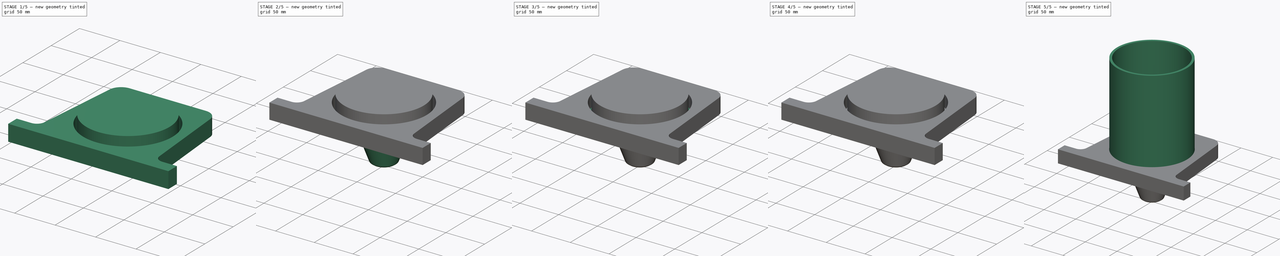
[diagram: build sequence overview — one tinted view per stage of 5, left to right]
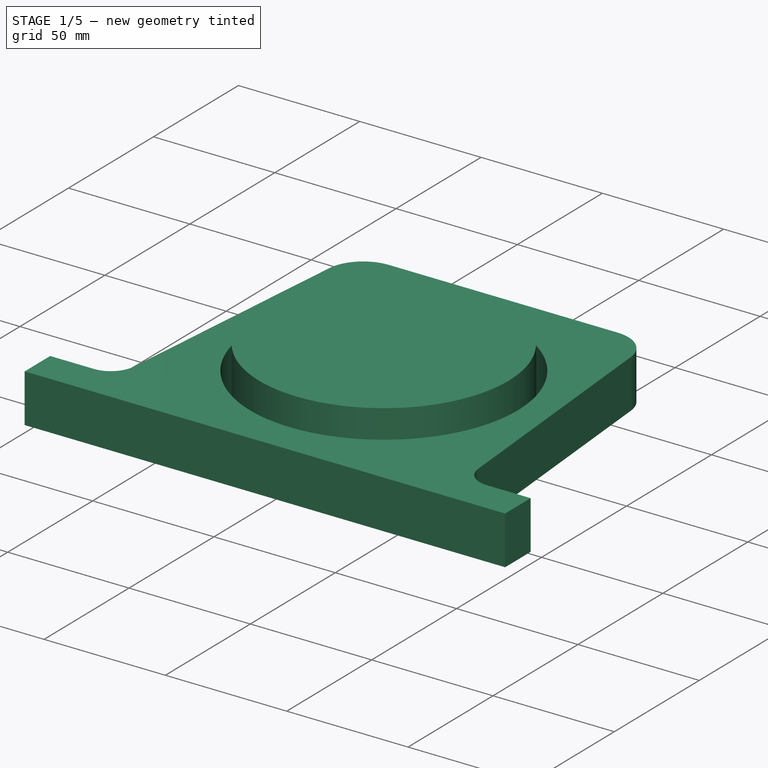
[diagram: stage 1 of 5 — iso view after this stage's code; geometry added in this stage tinted green]
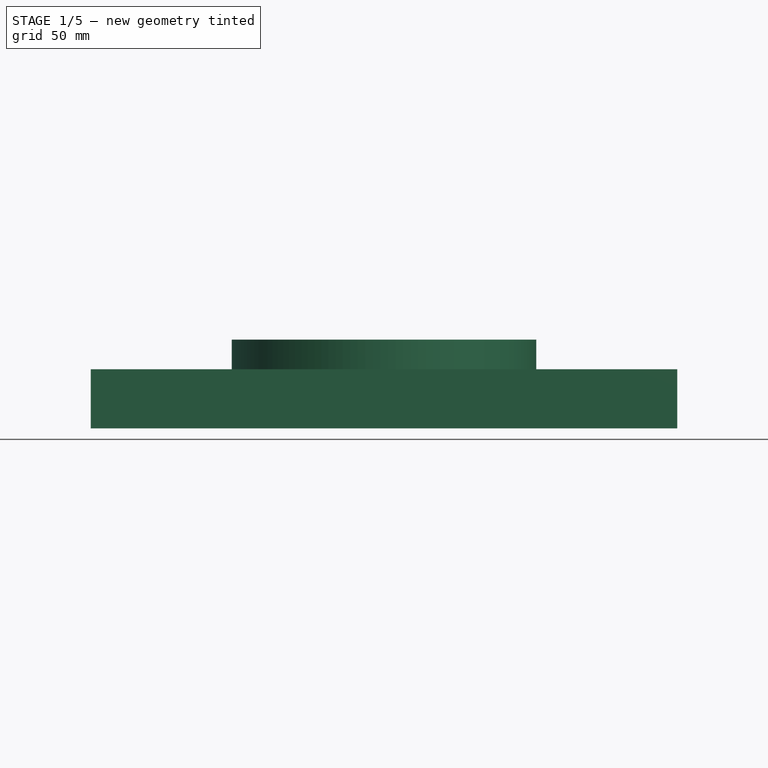
[diagram: stage 1 of 5 — front view after this stage's code; geometry added in this stage tinted green]
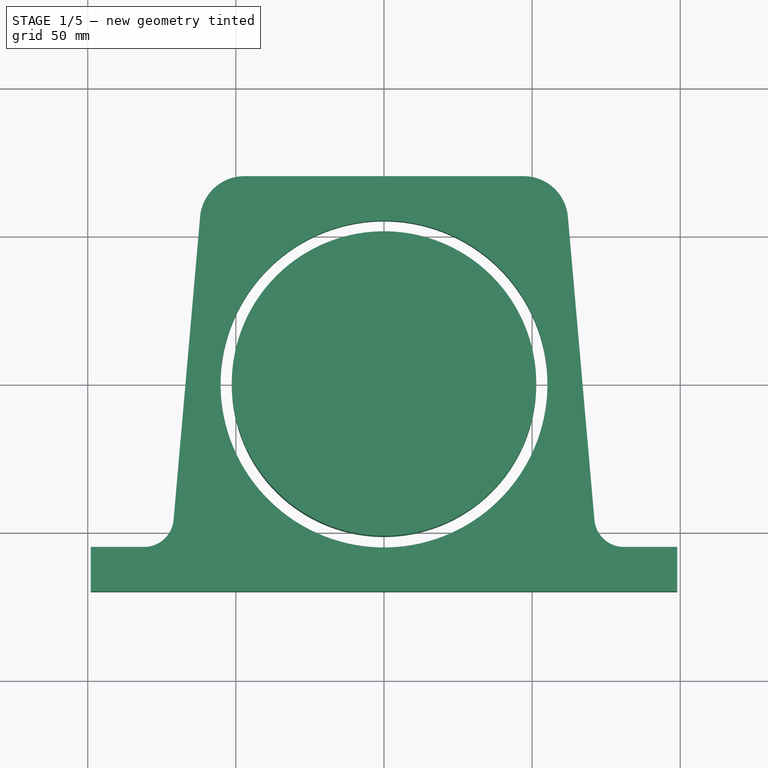
[diagram: stage 1 of 5 — top view after this stage's code; geometry added in this stage tinted green]
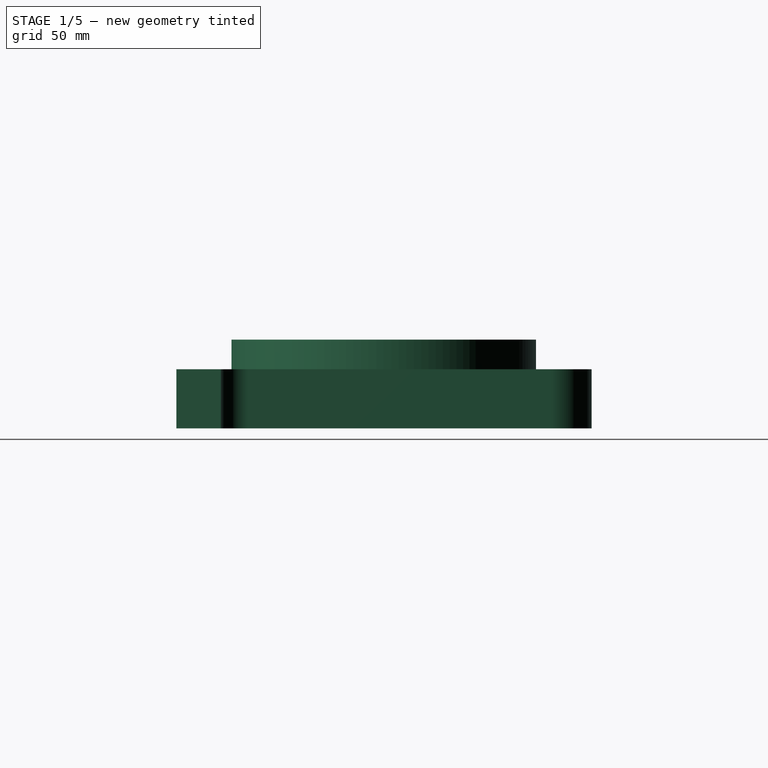
[diagram: stage 1 of 5 — right view after this stage's code; geometry added in this stage tinted green]
FCSTD DOCUMENT  (FreeCAD 0.19R24276 (Git))
Label: paper_briquette_maker
License: All rights reserved
LicenseURL: http://en.wikipedia.org/wiki/All_rights_reserved
objects: TechDraw::DrawProjGroupItem×36, PartDesign::Chamfer×5, PartDesign::AdditiveCylinder×4, PartDesign::Body×4, TechDraw::DrawSVGTemplate×4, TechDraw::DrawProjGroup×4, TechDraw::DrawPage×4, Sketcher::SketchObject×3, PartDesign::Pocket×2, PartDesign::Fillet×2, Spreadsheet::Sheet×1, PartDesign::PolarPattern×1, PartDesign::SubtractiveCylinder×1, PartDesign::AdditiveCone×1, PartDesign::Pad×1
note: 40 computed .brp shape members not serialized (recipe doc carries the construction recipe); baked Part::Feature solids carry a one-line shape summary decoded from their .brp

FEATURE [PartDesign::AdditiveCylinder] Cylinder002
  Angle = 360
  AttacherType = Attacher::AttachEngine3D
  Height = 30
  Radius = 51.4
  expr: Radius = Spreadsheet.tube_diameter / 2 - Spreadsheet.tube_thickness
FEATURE [PartDesign::Chamfer] Chamfer001
  Angle = 45
  Base = -> Cylinder002 [Edge3]
  BaseFeature = -> Cylinder002
  ChamferType = 0
  FlipDirection = false
  Size = 3
  Size2 = 1
  SupportTransform = false
FEATURE [PartDesign::Body] Body001  label="pusher"
  Group = -> [Cylinder002,Chamfer001,Cone,Chamfer004,Fillet,Fillet001]
  Origin = -> Origin001
  Placement = pos=(0,0,120) rot=(0,0,1;0rad)
  Tip = -> Fillet001
FEATURE [Sketcher::SketchObject] Sketch002
  FullyConstrained = true
  MapMode = 5
  Support = -> [XY_Plane003]
  expr: Constraints[10] = Spreadsheet.tube_diameter / 2 + 15
  expr: Constraints[12] = Spreadsheet.tube_diameter * 1.8
  expr: Constraints[9] = Spreadsheet.tube_diameter / 2 + Spreadsheet.gap
  sketch-geometry (14):
    g0: Circle CenterX=0 CenterY=0 CenterZ=0 NormalX=0 NormalY=0 NormalZ=1 AngleXU=0 Radius=55.18
    g1: LineSegment StartX=-99 StartY=-55 StartZ=0 EndX=-81 EndY=-55 EndZ=0
    g2: LineSegment StartX=-71.0381 StartY=-45.8716 StartZ=0 EndX=-62.0828 EndY=56.4873 EndZ=0
    g3: LineSegment StartX=-47.1399 StartY=70.18 StartZ=0 EndX=47.1399 EndY=70.18 EndZ=0
    g4: LineSegment StartX=62.0828 StartY=56.4873 StartZ=0 EndX=71.0381 EndY=-45.8716 EndZ=0
    g5: LineSegment StartX=81 StartY=-55 StartZ=0 EndX=99 EndY=-55 EndZ=0
    g6: LineSegment StartX=99 StartY=-55 StartZ=0 EndX=99 EndY=-70 EndZ=0
    g7: LineSegment StartX=99 StartY=-70 StartZ=0 EndX=-99 EndY=-70 EndZ=0
    g8: LineSegment StartX=-99 StartY=-70 StartZ=0 EndX=-99 EndY=-55 EndZ=0
    g9: ArcOfCircle CenterX=-47.1399 CenterY=55.18 CenterZ=0 NormalX=0 NormalY=0 NormalZ=1 AngleXU=0 Radius=15 StartAngle=1.5708 EndAngle=3.05433
    g10: ArcOfCircle CenterX=47.1399 CenterY=55.18 CenterZ=0 NormalX=0 NormalY=0 NormalZ=1 AngleXU=0 Radius=15 StartAngle=0.0872665 EndAngle=1.5708
    g11: ArcOfCircle CenterX=81 CenterY=-45 CenterZ=0 NormalX=0 NormalY=0 NormalZ=1 AngleXU=0 Radius=10 StartAngle=3.22886 EndAngle=4.71239
    g12: ArcOfCircle CenterX=-81 CenterY=-45 CenterZ=0 NormalX=0 NormalY=0 NormalZ=1 AngleXU=0 Radius=10 StartAngle=4.71239 EndAngle=6.19592
    g13: LineSegment StartX=-47.1399 StartY=55.18 StartZ=0 EndX=47.1399 EndY=55.18 EndZ=0
  constraints (34):
    c: Coincident(g0,g-1)
    c: Horizontal(g1)
    c: Horizontal(g5)
    c: Coincident(g5,g6)
    c: Coincident(g6,g7)
    c: Coincident(g7,g8)
    c: Coincident(g8,g1)
    c: Vertical(g8)
    c: Vertical(g6)
    c: Radius(g0) = 55.18
    c: DistanceY(g6,g0) = 70
    c: Symmetric(g7,g6,g-2)
    c: DistanceX(g7,g7) = 198
    c: Tangent(g2,g9) = 1.5708
    c: Tangent(g3,g9) = 1.5708
    c: Tangent(g3,g10) = 1.5708
    c: Tangent(g4,g10) = 1.5708
    c: Tangent(g4,g11) = -1.5708
    c: Tangent(g5,g11) = -1.5708
    c: Tangent(g1,g12) = -1.5708
    c: Tangent(g2,g12) = -1.5708
    c: Equal(g12,g11)
    c: Horizontal(g12,g11)
    c: Equal(g10,g9)
    c: Equal(g1,g5)
    c: Radius(g11) = 10
    c: Radius(g10) = 15
    c: Symmetric(g9,g10,g-2)
    c: DistanceY(g6,g6) = 15
    c: DistanceX(g1,g1) = 18
    c: Coincident(g13,g9)
    c: Coincident(g13,g10)
    c: Tangent(g13,g0)
    c: Angle(g5,g4) = 1.65806
FEATURE [PartDesign::Pad] Pad
  Direction = (1,1,1)
  Length = 20
  Length2 = 100
  Profile = -> Sketch002
  Type = 0
FEATURE [PartDesign::Body] Body003  label="tube_holder"
  Group = -> [Sketch002,Pad]
  Origin = -> Origin003
  Placement = pos=(0,0,20) rot=(0,0,1;0rad)
  Tip = -> Pad
FEATURE [TechDraw::DrawSVGTemplate] Template_Cylinder004
  Height = 297
  Orientation = 1
  Width = 420
FEATURE [TechDraw::DrawProjGroupItem] ProjItem  label="Front"
  CoarseView = false
  Direction = (0,-1,0)
  Focus = 100
  HardHidden = false
  IsoCount = 0
  IsoHidden = false
  IsoVisible = false
  LockPosition = true
  Perspective = false
  Rotation = 0
  RotationVector = (1,0,0)
  Scale = 0.375
  ScaleType = 2
  SeamHidden = false
  SeamVisible = true
  SmoothHidden = false
  SmoothVisible = true
  Source = -> [Cylinder004]
  Type = 0
  X = 0
  XDirection = (1,0,0)
  Y = 0
FEATURE [TechDraw::DrawProjGroupItem] ProjItem001  label="Right"
  CoarseView = false
  Direction = (1,-1e-16,0)
  Focus = 100
  HardHidden = false
  IsoCount = 0
  IsoHidden = false
  IsoVisible = false
  LockPosition = false
  Perspective = false
  Rotation = 0
  RotationVector = (1,0,0)
  Scale = 0.375
  ScaleType = 2
  SeamHidden = false
  SeamVisible = true
  SmoothHidden = false
  SmoothVisible = true
  Source = -> [Cylinder004]
  Type = 2
  X = -70.4968
  XDirection = (1e-16,1,0)
  Y = 0
FEATURE [TechDraw::DrawProjGroupItem] ProjItem002  label="Top"
  CoarseView = false
  Direction = (0,0,1)
  Focus = 100
  HardHidden = false
  IsoCount = 0
  IsoHidden = false
  IsoVisible = false
  LockPosition = false
  Perspective = false
  Rotation = 0
  RotationVector = (1,0,0)
  Scale = 0.375
  ScaleType = 2
  SeamHidden = false
  SeamVisible = true
  SmoothHidden = false
  SmoothVisible = true
  Source = -> [Cylinder004]
  Type = 4
  X = 0
  XDirection = (1,0,0)
  Y = -98.9904
FEATURE [TechDraw::DrawProjGroupItem] ProjItem003  label="Left"
  CoarseView = false
  Direction = (-1,-1e-16,0)
  Focus = 100
  HardHidden = false
  IsoCount = 0
  IsoHidden = false
  IsoVisible = false
  LockPosition = false
  Perspective = false
  Rotation = 0
  RotationVector = (1,0,0)
  Scale = 0.375
  ScaleType = 2
  SeamHidden = false
  SeamVisible = true
  SmoothHidden = false
  SmoothVisible = true
  Source = -> [Cylinder004]
  Type = 1
  X = 70.4968
  XDirection = (1e-16,-1,0)
  Y = 0
FEATURE [TechDraw::DrawProjGroupItem] ProjItem004  label="Bottom"
  CoarseView = false
  Direction = (0,0,-1)
  Focus = 100
  HardHidden = false
  IsoCount = 0
  IsoHidden = false
  IsoVisible = false
  LockPosition = false
  Perspective = false
  Rotation = 0
  RotationVector = (1,0,0)
  Scale = 0.375
  ScaleType = 2
  SeamHidden = false
  SeamVisible = true
  SmoothHidden = false
  SmoothVisible = true
  Source = -> [Cylinder004]
  Type = 5
  X = 0
  XDirection = (1,0,0)
  Y = 70.4968
FEATURE [TechDraw::DrawProjGroupItem] ProjItem005  label="FrontBottomLeft"
  CoarseView = false
  Direction = (-0.57735,-0.57735,-0.57735)
  Focus = 100
  HardHidden = false
  IsoCount = 0
  IsoHidden = false
  IsoVisible = false
  LockPosition = false
  Perspective = false
  Rotation = 0
  RotationVector = (1,0,0)
  Scale = 0.375
  ScaleType = 2
  SeamHidden = false
  SeamVisible = true
  SmoothHidden = false
  SmoothVisible = true
  Source = -> [Cylinder004]
  Type = 8
  X = 70.4968
  XDirection = (0.707107,-0.707107,0)
  Y = 84.7436
FEATURE [TechDraw::DrawProjGroupItem] ProjItem006  label="FrontTopRight"
  CoarseView = false
  Direction = (0.57735,-0.57735,0.57735)
  Focus = 100
  HardHidden = false
  IsoCount = 0
  IsoHidden = false
  IsoVisible = false
  LockPosition = false
  Perspective = false
  Rotation = 0
  RotationVector = (1,0,0)
  Scale = 0.375
  ScaleType = 2
  SeamHidden = false
  SeamVisible = true
  SmoothHidden = false
  SmoothVisible = true
  Source = -> [Cylinder004]
  Type = 7
  X = -70.4968
  XDirection = (0.707107,0.707107,0)
  Y = -84.7436
FEATURE [TechDraw::DrawProjGroupItem] ProjItem007  label="FrontTopLeft"
  CoarseView = false
  Direction = (-0.57735,-0.57735,0.57735)
  Focus = 100
  HardHidden = false
  IsoCount = 0
  IsoHidden = false
  IsoVisible = false
  LockPosition = false
  Perspective = false
  Rotation = 0
  RotationVector = (1,0,0)
  Scale = 0.375
  ScaleType = 2
  SeamHidden = false
  SeamVisible = true
  SmoothHidden = false
  SmoothVisible = true
  Source = -> [Cylinder004]
  Type = 6
  X = 70.4968
  XDirection = (0.707107,-0.707107,0)
  Y = -84.7436
FEATURE [TechDraw::DrawProjGroupItem] ProjItem008  label="FrontBottomRight"
  CoarseView = false
  Direction = (0.57735,-0.57735,-0.57735)
  Focus = 100
  HardHidden = false
  IsoCount = 0
  IsoHidden = false
  IsoVisible = false
  LockPosition = false
  Perspective = false
  Rotation = 0
  RotationVector = (1,0,0)
  Scale = 0.375
  ScaleType = 2
  SeamHidden = false
  SeamVisible = true
  SmoothHidden = false
  SmoothVisible = true
  Source = -> [Cylinder004]
  Type = 9
  X = -70.4968
  XDirection = (0.707107,0.707107,0)
  Y = 84.7436
FEATURE [TechDraw::DrawProjGroup] ProjGroup_Cylinder004
  Anchor = -> ProjItem
  AutoDistribute = true
  LockPosition = false
  ProjectionType = 0
  Rotation = 0
  Scale = 0.375
  ScaleType = 1
  Source = -> [Cylinder004]
  Views = -> [ProjItem,ProjItem001,ProjItem002,ProjItem003,ProjItem004,ProjItem005,ProjItem006,ProjItem007,ProjItem008]
  X = 210
  Y = 148.5
  spacingX = 15
  spacingY = 15
FEATURE [TechDraw::DrawPage] Page_Cylinder004
  KeepUpdated = true
  NextBalloonIndex = 1
  ProjectionType = 0
  Template = -> Template_Cylinder004
  Views = -> [ProjGroup_Cylinder004]
FEATURE [TechDraw::DrawSVGTemplate] Template_Chamfer003
  Height = 297
  Orientation = 1
  Width = 420
FEATURE [TechDraw::DrawProjGroupItem] ProjItem009  label="Front001"
  CoarseView = false
  Direction = (0,-1,0)
  Focus = 100
  HardHidden = false
  IsoCount = 0
  IsoHidden = false
  IsoVisible = false
  LockPosition = true
  Perspective = false
  Rotation = 0
  RotationVector = (1,0,0)
  Scale = 0.75
  ScaleType = 2
  SeamHidden = false
  SeamVisible = true
  SmoothHidden = false
  SmoothVisible = true
  Source = -> [Chamfer003]
  Type = 0
  X = 0
  XDirection = (1,0,0)
  Y = 0
FEATURE [TechDraw::DrawProjGroupItem] ProjItem010  label="Right001"
  CoarseView = false
  Direction = (1,-1e-16,0)
  Focus = 100
  HardHidden = false
  IsoCount = 0
  IsoHidden = false
  IsoVisible = false
  LockPosition = false
  Perspective = false
  Rotation = 0
  RotationVector = (1,0,0)
  Scale = 0.75
  ScaleType = 2
  SeamHidden = false
  SeamVisible = true
  SmoothHidden = false
  SmoothVisible = true
  Source = -> [Chamfer003]
  Type = 2
  X = -97.5
  XDirection = (1e-16,1,0)
  Y = 0
FEATURE [TechDraw::DrawProjGroupItem] ProjItem011  label="Top001"
  CoarseView = false
  Direction = (0,0,1)
  Focus = 100
  HardHidden = false
  IsoCount = 0
  IsoHidden = false
  IsoVisible = false
  LockPosition = false
  Perspective = false
  Rotation = 0
  RotationVector = (1,0,0)
  Scale = 0.75
  ScaleType = 2
  SeamHidden = false
  SeamVisible = true
  SmoothHidden = false
  SmoothVisible = true
  Source = -> [Chamfer003]
  Type = 4
  X = 0
  XDirection = (1,0,0)
  Y = -97.5
FEATURE [TechDraw::DrawProjGroupItem] ProjItem012  label="Left001"
  CoarseView = false
  Direction = (-1,-1e-16,0)
  Focus = 100
  HardHidden = false
  IsoCount = 0
  IsoHidden = false
  IsoVisible = false
  LockPosition = false
  Perspective = false
  Rotation = 0
  RotationVector = (1,0,0)
  Scale = 0.75
  ScaleType = 2
  SeamHidden = false
  SeamVisible = true
  SmoothHidden = false
  SmoothVisible = true
  Source = -> [Chamfer003]
  Type = 1
  X = 97.5
  XDirection = (1e-16,-1,0)
  Y = 0
FEATURE [TechDraw::DrawProjGroupItem] ProjItem013  label="Bottom001"
  CoarseView = false
  Direction = (0,0,-1)
  Focus = 100
  HardHidden = false
  IsoCount = 0
  IsoHidden = false
  IsoVisible = false
  LockPosition = false
  Perspective = false
  Rotation = 0
  RotationVector = (1,0,0)
  Scale = 0.75
  ScaleType = 2
  SeamHidden = false
  SeamVisible = true
  SmoothHidden = false
  SmoothVisible = true
  Source = -> [Chamfer003]
  Type = 5
  X = 0
  XDirection = (1,0,0)
  Y = 97.5
FEATURE [TechDraw::DrawProjGroupItem] ProjItem014  label="FrontBottomLeft001"
  CoarseView = false
  Direction = (-0.57735,-0.57735,-0.57735)
  Focus = 100
  HardHidden = false
  IsoCount = 0
  IsoHidden = false
  IsoVisible = false
  LockPosition = false
  Perspective = false
  Rotation = 0
  RotationVector = (1,0,0)
  Scale = 0.75
  ScaleType = 2
  SeamHidden = false
  SeamVisible = true
  SmoothHidden = false
  SmoothVisible = true
  Source = -> [Chamfer003]
  Type = 8
  X = 97.5
  XDirection = (0.707107,-0.707107,0)
  Y = 81.5193
FEATURE [TechDraw::DrawProjGroupItem] ProjItem015  label="FrontTopRight001"
  CoarseView = false
  Direction = (0.57735,-0.57735,0.57735)
  Focus = 100
  HardHidden = false
  IsoCount = 0
  IsoHidden = false
  IsoVisible = false
  LockPosition = false
  Perspective = false
  Rotation = 0
  RotationVector = (1,0,0)
  Scale = 0.75
  ScaleType = 2
  SeamHidden = false
  SeamVisible = true
  SmoothHidden = false
  SmoothVisible = true
  Source = -> [Chamfer003]
  Type = 7
  X = -97.5
  XDirection = (0.707107,0.707107,0)
  Y = -113.481
FEATURE [TechDraw::DrawProjGroupItem] ProjItem016  label="FrontTopLeft001"
  CoarseView = false
  Direction = (-0.57735,-0.57735,0.57735)
  Focus = 100
  HardHidden = false
  IsoCount = 0
  IsoHidden = false
  IsoVisible = false
  LockPosition = false
  Perspective = false
  Rotation = 0
  RotationVector = (1,0,0)
  Scale = 0.75
  ScaleType = 2
  SeamHidden = false
  SeamVisible = true
  SmoothHidden = false
  SmoothVisible = true
  Source = -> [Chamfer003]
  Type = 6
  X = 97.5
  XDirection = (0.707107,-0.707107,0)
  Y = -113.481
FEATURE [TechDraw::DrawProjGroupItem] ProjItem017  label="FrontBottomRight001"
  CoarseView = false
  Direction = (0.57735,-0.57735,-0.57735)
  Focus = 100
  HardHidden = false
  IsoCount = 0
  IsoHidden = false
  IsoVisible = false
  LockPosition = false
  Perspective = false
  Rotation = 0
  RotationVector = (1,0,0)
  Scale = 0.75
  ScaleType = 2
  SeamHidden = false
  SeamVisible = true
  SmoothHidden = false
  SmoothVisible = true
  Source = -> [Chamfer003]
  Type = 9
  X = -97.5
  XDirection = (0.707107,0.707107,0)
  Y = 81.5193
FEATURE [TechDraw::DrawProjGroup] ProjGroup_Chamfer003
  Anchor = -> ProjItem009
  AutoDistribute = true
  LockPosition = false
  ProjectionType = 0
  Rotation = 0
  Scale = 0.75
  ScaleType = 1
  Source = -> [Chamfer003]
  Views = -> [ProjItem009,ProjItem010,ProjItem011,ProjItem012,ProjItem013,ProjItem014,ProjItem015,ProjItem016,ProjItem017]
  X = 210
  Y = 148.5
  spacingX = 15
  spacingY = 15
FEATURE [TechDraw::DrawPage] Page_Chamfer003
  KeepUpdated = true
  NextBalloonIndex = 1
  ProjectionType = 0
  Template = -> Template_Chamfer003
  Views = -> [ProjGroup_Chamfer003]
FEATURE [TechDraw::DrawSVGTemplate] Template_Fillet001
  Height = 297
  Orientation = 1
  Width = 420
FEATURE [TechDraw::DrawProjGroupItem] ProjItem018  label="Front002"
  CoarseView = false
  Direction = (0,-1,0)
  Focus = 100
  HardHidden = false
  IsoCount = 0
  IsoHidden = false
  IsoVisible = false
  LockPosition = true
  Perspective = false
  Rotation = 0
  RotationVector = (1,0,0)
  Scale = 0.5
  ScaleType = 2
  SeamHidden = false
  SeamVisible = true
  SmoothHidden = false
  SmoothVisible = true
  Source = -> [Fillet001]
  Type = 0
  X = 0
  XDirection = (1,0,0)
  Y = 0
FEATURE [TechDraw::DrawProjGroupItem] ProjItem019  label="Right002"
  CoarseView = false
  Direction = (1,-1e-16,0)
  Focus = 100
  HardHidden = false
  IsoCount = 0
  IsoHidden = false
  IsoVisible = false
  LockPosition = false
  Perspective = false
  Rotation = 0
  RotationVector = (1,0,0)
  Scale = 0.5
  ScaleType = 2
  SeamHidden = false
  SeamVisible = true
  SmoothHidden = false
  SmoothVisible = true
  Source = -> [Fillet001]
  Type = 2
  X = -66.4551
  XDirection = (1e-16,1,0)
  Y = 0
FEATURE [TechDraw::DrawProjGroupItem] ProjItem020  label="Top002"
  CoarseView = false
  Direction = (0,0,1)
  Focus = 100
  HardHidden = false
  IsoCount = 0
  IsoHidden = false
  IsoVisible = false
  LockPosition = false
  Perspective = false
  Rotation = 0
  RotationVector = (1,0,0)
  Scale = 0.5
  ScaleType = 2
  SeamHidden = false
  SeamVisible = true
  SmoothHidden = false
  SmoothVisible = true
  Source = -> [Fillet001]
  Type = 4
  X = 0
  XDirection = (1,0,0)
  Y = -66.5654
FEATURE [TechDraw::DrawProjGroupItem] ProjItem021  label="Left002"
  CoarseView = false
  Direction = (-1,-1e-16,0)
  Focus = 100
  HardHidden = false
  IsoCount = 0
  IsoHidden = false
  IsoVisible = false
  LockPosition = false
  Perspective = false
  Rotation = 0
  RotationVector = (1,0,0)
  Scale = 0.5
  ScaleType = 2
  SeamHidden = false
  SeamVisible = true
  SmoothHidden = false
  SmoothVisible = true
  Source = -> [Fillet001]
  Type = 1
  X = 66.4551
  XDirection = (1e-16,-1,0)
  Y = 0
FEATURE [TechDraw::DrawProjGroupItem] ProjItem022  label="Bottom002"
  CoarseView = false
  Direction = (0,0,-1)
  Focus = 100
  HardHidden = false
  IsoCount = 0
  IsoHidden = false
  IsoVisible = false
  LockPosition = false
  Perspective = false
  Rotation = 0
  RotationVector = (1,0,0)
  Scale = 0.5
  ScaleType = 2
  SeamHidden = false
  SeamVisible = true
  SmoothHidden = false
  SmoothVisible = true
  Source = -> [Fillet001]
  Type = 5
  X = 0
  XDirection = (1,0,0)
  Y = 66.4551
FEATURE [TechDraw::DrawProjGroupItem] ProjItem023  label="FrontBottomLeft002"
  CoarseView = false
  Direction = (-0.57735,-0.57735,-0.57735)
  Focus = 100
  HardHidden = false
  IsoCount = 0
  IsoHidden = false
  IsoVisible = false
  LockPosition = false
  Perspective = false
  Rotation = 0
  RotationVector = (1,0,0)
  Scale = 0.5
  ScaleType = 2
  SeamHidden = false
  SeamVisible = true
  SmoothHidden = false
  SmoothVisible = true
  Source = -> [Fillet001]
  Type = 8
  X = 66.4551
  XDirection = (0.707107,-0.707107,0)
  Y = 65.7214
FEATURE [TechDraw::DrawProjGroupItem] ProjItem024  label="FrontTopRight002"
  CoarseView = false
  Direction = (0.57735,-0.57735,0.57735)
  Focus = 100
  HardHidden = false
  IsoCount = 0
  IsoHidden = false
  IsoVisible = false
  LockPosition = false
  Perspective = false
  Rotation = 0
  RotationVector = (1,0,0)
  Scale = 0.5
  ScaleType = 2
  SeamHidden = false
  SeamVisible = true
  SmoothHidden = false
  SmoothVisible = true
  Source = -> [Fillet001]
  Type = 7
  X = -66.4551
  XDirection = (0.707107,0.707107,0)
  Y = -67.524
FEATURE [TechDraw::DrawProjGroupItem] ProjItem025  label="FrontTopLeft002"
  CoarseView = false
  Direction = (-0.57735,-0.57735,0.57735)
  Focus = 100
  HardHidden = false
  IsoCount = 0
  IsoHidden = false
  IsoVisible = false
  LockPosition = false
  Perspective = false
  Rotation = 0
  RotationVector = (1,0,0)
  Scale = 0.5
  ScaleType = 2
  SeamHidden = false
  SeamVisible = true
  SmoothHidden = false
  SmoothVisible = true
  Source = -> [Fillet001]
  Type = 6
  X = 66.4551
  XDirection = (0.707107,-0.707107,0)
  Y = -67.06
FEATURE [TechDraw::DrawProjGroupItem] ProjItem026  label="FrontBottomRight002"
  CoarseView = false
  Direction = (0.57735,-0.57735,-0.57735)
  Focus = 100
  HardHidden = false
  IsoCount = 0
  IsoHidden = false
  IsoVisible = false
  LockPosition = false
  Perspective = false
  Rotation = 0
  RotationVector = (1,0,0)
  Scale = 0.5
  ScaleType = 2
  SeamHidden = false
  SeamVisible = true
  SmoothHidden = false
  SmoothVisible = true
  Source = -> [Fillet001]
  Type = 9
  X = -66.4551
  XDirection = (0.707107,0.707107,0)
  Y = 66.2051
FEATURE [TechDraw::DrawProjGroup] ProjGroup_Fillet001
  Anchor = -> ProjItem018
  AutoDistribute = true
  LockPosition = false
  ProjectionType = 0
  Rotation = 0
  Scale = 0.5
  ScaleType = 1
  Source = -> [Fillet001]
  Views = -> [ProjItem018,ProjItem019,ProjItem020,ProjItem021,ProjItem022,ProjItem023,ProjItem024,ProjItem025,ProjItem026]
  X = 210
  Y = 148.5
  spacingX = 15
  spacingY = 15
FEATURE [TechDraw::DrawPage] Page_Fillet001
  KeepUpdated = true
  NextBalloonIndex = 1
  ProjectionType = 0
  Template = -> Template_Fillet001
  Views = -> [ProjGroup_Fillet001]
FEATURE [TechDraw::DrawSVGTemplate] Template_Pad
  Height = 297
  Orientation = 1
  Width = 420
FEATURE [TechDraw::DrawProjGroupItem] ProjItem027  label="Front003"
  CoarseView = false
  Direction = (0,-1,0)
  Focus = 100
  HardHidden = false
  IsoCount = 0
  IsoHidden = false
  IsoVisible = false
  LockPosition = true
  Perspective = false
  Rotation = 0
  RotationVector = (1,0,0)
  Scale = 0.375
  ScaleType = 2
  SeamHidden = false
  SeamVisible = true
  SmoothHidden = false
  SmoothVisible = true
  Source = -> [Pad]
  Type = 0
  X = 0
  XDirection = (1,0,0)
  Y = 0
FEATURE [TechDraw::DrawProjGroupItem] ProjItem028  label="Right003"
  CoarseView = false
  Direction = (1,-1e-16,0)
  Focus = 100
  HardHidden = false
  IsoCount = 0
  IsoHidden = false
  IsoVisible = false
  LockPosition = false
  Perspective = false
  Rotation = 0
  RotationVector = (1,0,0)
  Scale = 0.375
  ScaleType = 2
  SeamHidden = false
  SeamVisible = true
  SmoothHidden = false
  SmoothVisible = true
  Source = -> [Pad]
  Type = 2
  X = -80.0685
  XDirection = (1e-16,1,0)
  Y = 0
FEATURE [TechDraw::DrawProjGroupItem] ProjItem029  label="Top003"
  CoarseView = false
  Direction = (0,0,1)
  Focus = 100
  HardHidden = false
  IsoCount = 0
  IsoHidden = false
  IsoVisible = false
  LockPosition = false
  Perspective = false
  Rotation = 0
  RotationVector = (1,0,0)
  Scale = 0.375
  ScaleType = 2
  SeamHidden = false
  SeamVisible = true
  SmoothHidden = false
  SmoothVisible = true
  Source = -> [Pad]
  Type = 4
  X = 0
  XDirection = (1,0,0)
  Y = -105.071
FEATURE [TechDraw::DrawProjGroupItem] ProjItem030  label="Left003"
  CoarseView = false
  Direction = (-1,-1e-16,0)
  Focus = 100
  HardHidden = false
  IsoCount = 0
  IsoHidden = false
  IsoVisible = false
  LockPosition = false
  Perspective = false
  Rotation = 0
  RotationVector = (1,0,0)
  Scale = 0.375
  ScaleType = 2
  SeamHidden = false
  SeamVisible = true
  SmoothHidden = false
  SmoothVisible = true
  Source = -> [Pad]
  Type = 1
  X = 80.0685
  XDirection = (1e-16,-1,0)
  Y = 0
FEATURE [TechDraw::DrawProjGroupItem] ProjItem031  label="Bottom003"
  CoarseView = false
  Direction = (0,0,-1)
  Focus = 100
  HardHidden = false
  IsoCount = 0
  IsoHidden = false
  IsoVisible = false
  LockPosition = false
  Perspective = false
  Rotation = 0
  RotationVector = (1,0,0)
  Scale = 0.375
  ScaleType = 2
  SeamHidden = false
  SeamVisible = true
  SmoothHidden = false
  SmoothVisible = true
  Source = -> [Pad]
  Type = 5
  X = 0
  XDirection = (1,0,0)
  Y = 80.0685
FEATURE [TechDraw::DrawProjGroupItem] ProjItem032  label="FrontBottomLeft003"
  CoarseView = false
  Direction = (-0.57735,-0.57735,-0.57735)
  Focus = 100
  HardHidden = false
  IsoCount = 0
  IsoHidden = false
  IsoVisible = false
  LockPosition = false
  Perspective = false
  Rotation = 0
  RotationVector = (1,0,0)
  Scale = 0.375
  ScaleType = 2
  SeamHidden = false
  SeamVisible = true
  SmoothHidden = false
  SmoothVisible = true
  Source = -> [Pad]
  Type = 8
  X = 92.5696
  XDirection = (0.707107,-0.707107,0)
  Y = 79.239
FEATURE [TechDraw::DrawProjGroupItem] ProjItem033  label="FrontTopRight003"
  CoarseView = false
  Direction = (0.57735,-0.57735,0.57735)
  Focus = 100
  HardHidden = false
  IsoCount = 0
  IsoHidden = false
  IsoVisible = false
  LockPosition = false
  Perspective = false
  Rotation = 0
  RotationVector = (1,0,0)
  Scale = 0.375
  ScaleType = 2
  SeamHidden = false
  SeamVisible = true
  SmoothHidden = false
  SmoothVisible = true
  Source = -> [Pad]
  Type = 7
  X = -92.5696
  XDirection = (0.707107,0.707107,0)
  Y = -105.9
FEATURE [TechDraw::DrawProjGroupItem] ProjItem034  label="FrontTopLeft003"
  CoarseView = false
  Direction = (-0.57735,-0.57735,0.57735)
  Focus = 100
  HardHidden = false
  IsoCount = 0
  IsoHidden = false
  IsoVisible = false
  LockPosition = false
  Perspective = false
  Rotation = 0
  RotationVector = (1,0,0)
  Scale = 0.375
  ScaleType = 2
  SeamHidden = false
  SeamVisible = true
  SmoothHidden = false
  SmoothVisible = true
  Source = -> [Pad]
  Type = 6
  X = 92.5696
  XDirection = (0.707107,-0.707107,0)
  Y = -105.9
FEATURE [TechDraw::DrawProjGroupItem] ProjItem035  label="FrontBottomRight003"
  CoarseView = false
  Direction = (0.57735,-0.57735,-0.57735)
  Focus = 100
  HardHidden = false
  IsoCount = 0
  IsoHidden = false
  IsoVisible = false
  LockPosition = false
  Perspective = false
  Rotation = 0
  RotationVector = (1,0,0)
  Scale = 0.375
  ScaleType = 2
  SeamHidden = false
  SeamVisible = true
  SmoothHidden = false
  SmoothVisible = true
  Source = -> [Pad]
  Type = 9
  X = -92.5696
  XDirection = (0.707107,0.707107,0)
  Y = 79.239
FEATURE [TechDraw::DrawProjGroup] ProjGroup_Pad
  Anchor = -> ProjItem027
  AutoDistribute = true
  LockPosition = false
  ProjectionType = 0
  Rotation = 0
  Scale = 0.375
  ScaleType = 1
  Source = -> [Pad]
  Views = -> [ProjItem027,ProjItem028,ProjItem029,ProjItem030,ProjItem031,ProjItem032,ProjItem033,ProjItem034,ProjItem035]
  X = 210
  Y = 148.5
  spacingX = 15
  spacingY = 15
FEATURE [TechDraw::DrawPage] Page_Pad
  KeepUpdated = true
  NextBalloonIndex = 1
  ProjectionType = 0
  Template = -> Template_Pad
  Views = -> [ProjGroup_Pad]
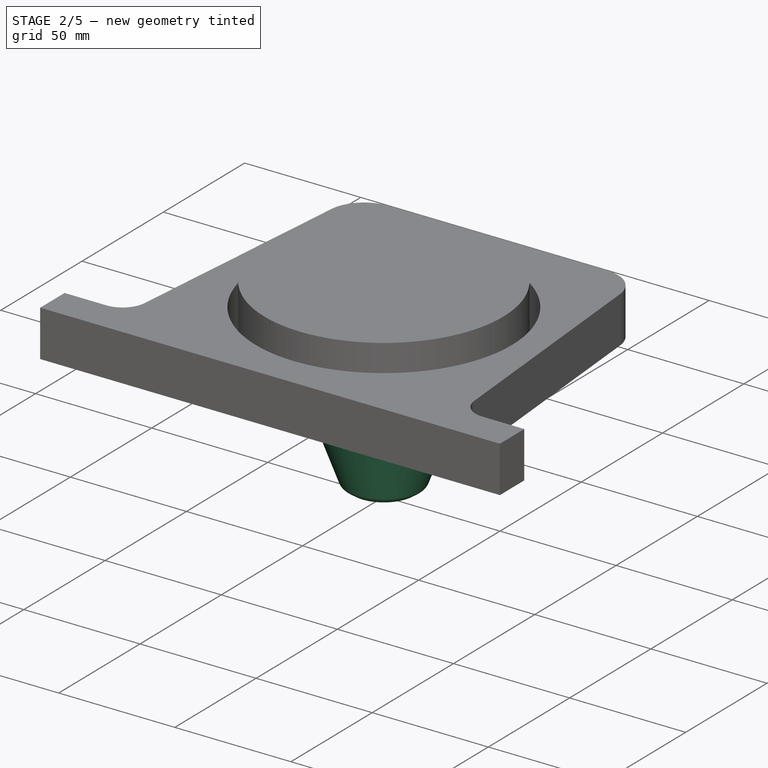
[diagram: stage 2 of 5 — iso view after this stage's code; geometry added in this stage tinted green]
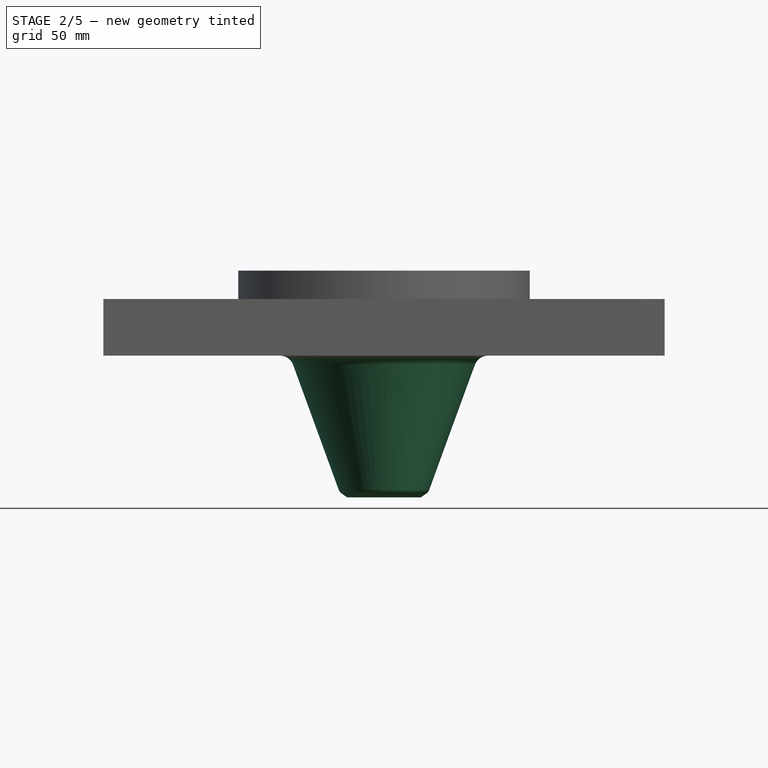
[diagram: stage 2 of 5 — front view after this stage's code; geometry added in this stage tinted green]
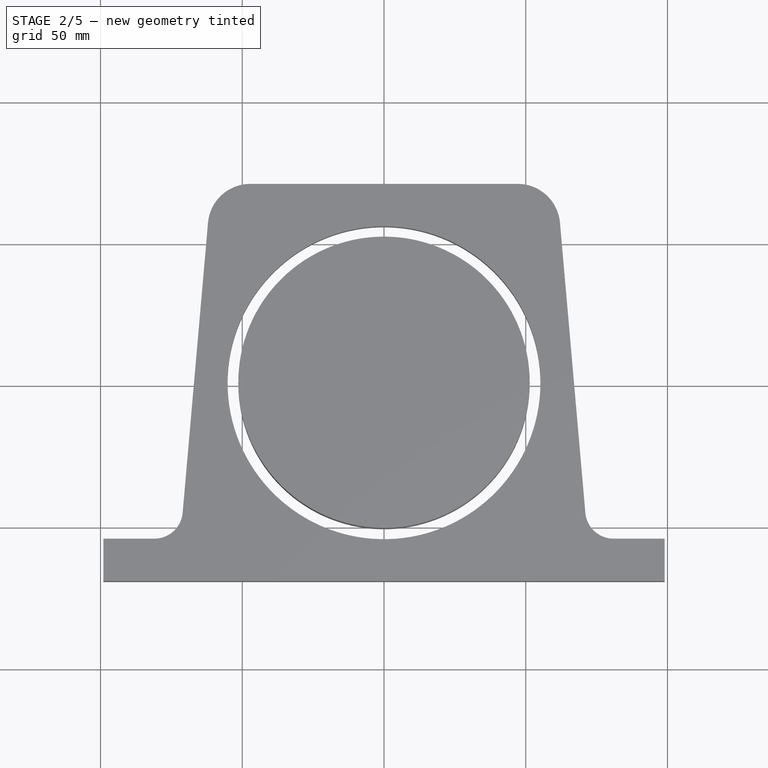
[diagram: stage 2 of 5 — top view after this stage's code; geometry added in this stage tinted green]
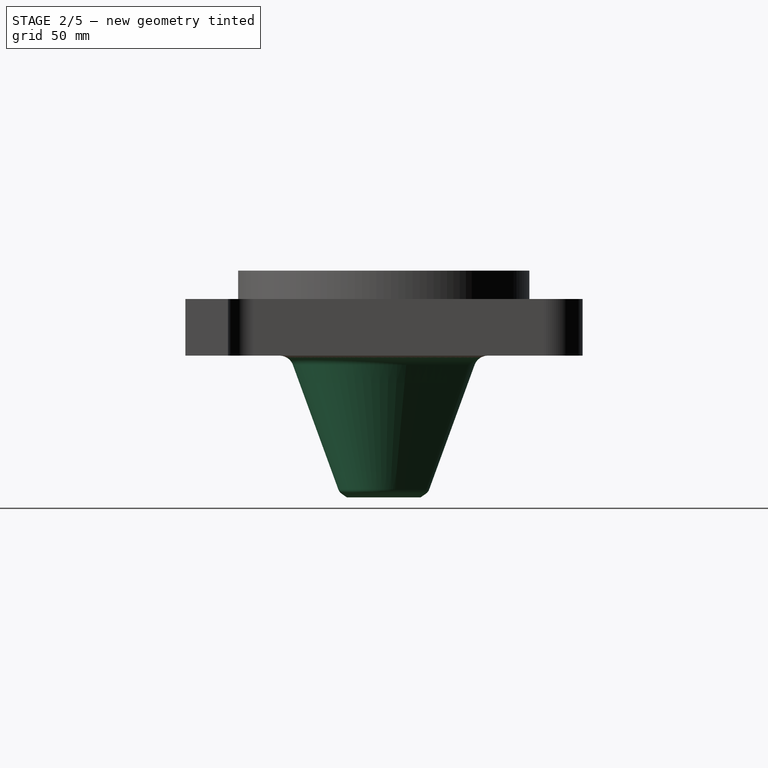
[diagram: stage 2 of 5 — right view after this stage's code; geometry added in this stage tinted green]
FEATURE [PartDesign::Body] Body002  label="tube"
  Group = -> [Cylinder003,Cylinder004]
  Origin = -> Origin002
  Tip = -> Cylinder004
FEATURE [PartDesign::AdditiveCone] Cone
  Angle = 360
  AttacherType = Attacher::AttachEngine3D
  BaseFeature = -> Chamfer001
  Height = 80
  MapMode = 5
  Placement = pos=(0,0,30) rot=(0,1,0;3.14159rad)
  Radius1 = 44.2
  Radius2 = 15
  Support = -> [Chamfer001]
  expr: Radius1 = Spreadsheet.tube_diameter / 2 - Spreadsheet.tube_thickness * 3
FEATURE [PartDesign::Body] Body  label="bottom"
  Group = -> [Cylinder,Cylinder001,Sketch,Pocket,PolarPattern,Sketch001,Pocket001,Chamfer,Chamfer002,Chamfer003]
  Origin = -> Origin
  Tip = -> Chamfer003
FEATURE [PartDesign::Chamfer] Chamfer004
  Angle = 45
  Base = -> Cone [Edge9]
  BaseFeature = -> Cone
  ChamferType = 0
  FlipDirection = false
  Placement = pos=(0,0,30) rot=(0,1,0;3.14159rad)
  Size = 2
  Size2 = 1
  SupportTransform = false
FEATURE [PartDesign::Fillet] Fillet
  Base = -> Chamfer004 [Edge3]
  BaseFeature = -> Chamfer004
  Placement = pos=(0,0,30) rot=(0,1,0;3.14159rad)
  Radius = 5
  SupportTransform = false
FEATURE [PartDesign::Fillet] Fillet001
  Base = -> Fillet [Edge3]
  BaseFeature = -> Fillet
  Placement = pos=(0,0,30) rot=(0,1,0;3.14159rad)
  Radius = 3
  Refine = true
  SupportTransform = false
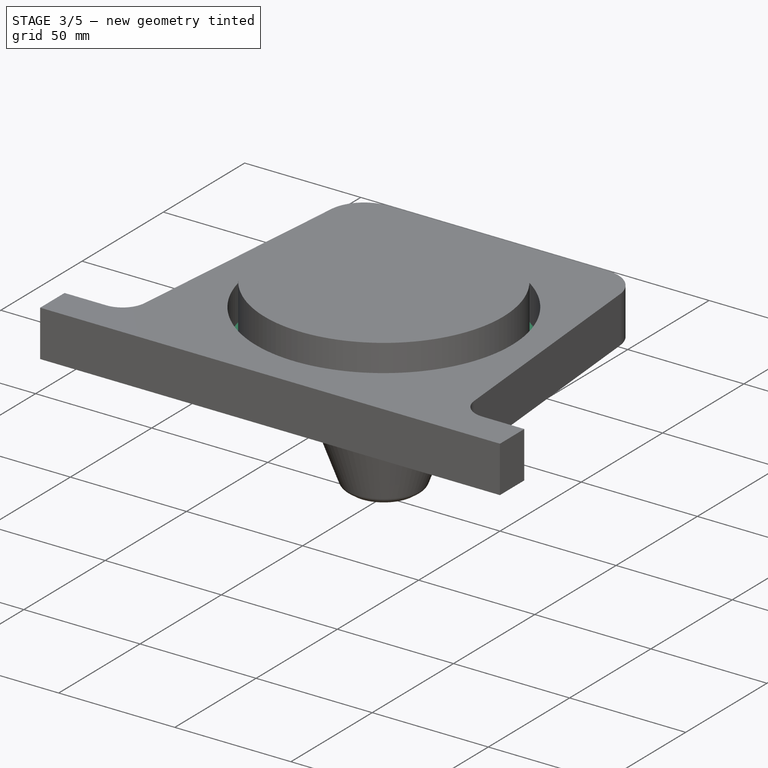
[diagram: stage 3 of 5 — iso view after this stage's code; geometry added in this stage tinted green]
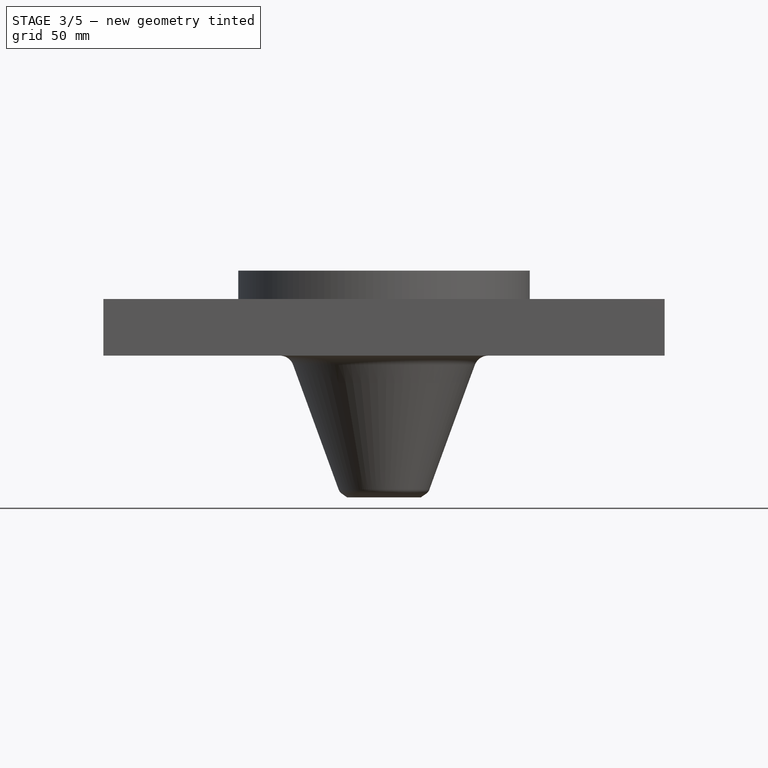
[diagram: stage 3 of 5 — front view after this stage's code; geometry added in this stage tinted green]
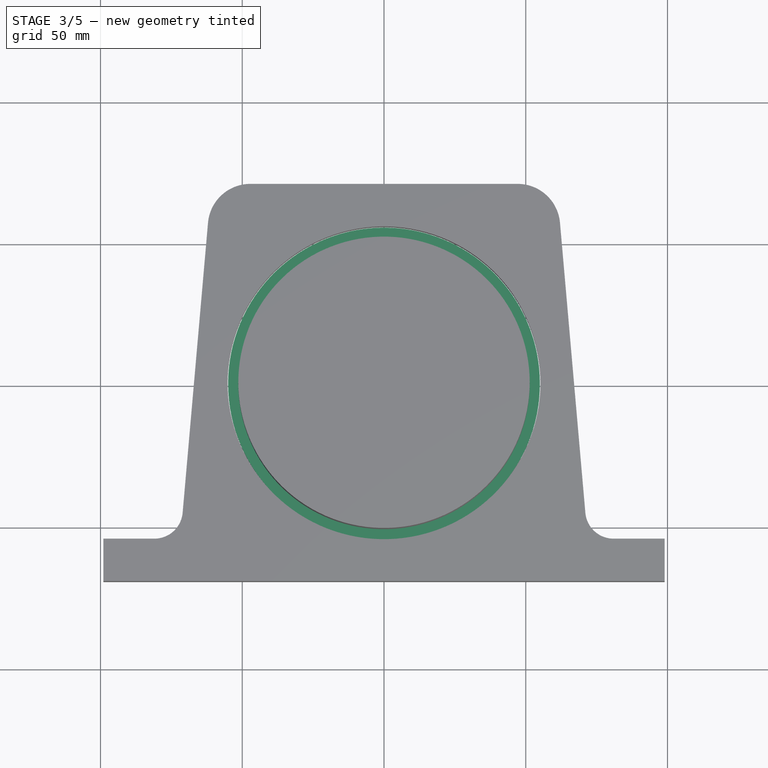
[diagram: stage 3 of 5 — top view after this stage's code; geometry added in this stage tinted green]
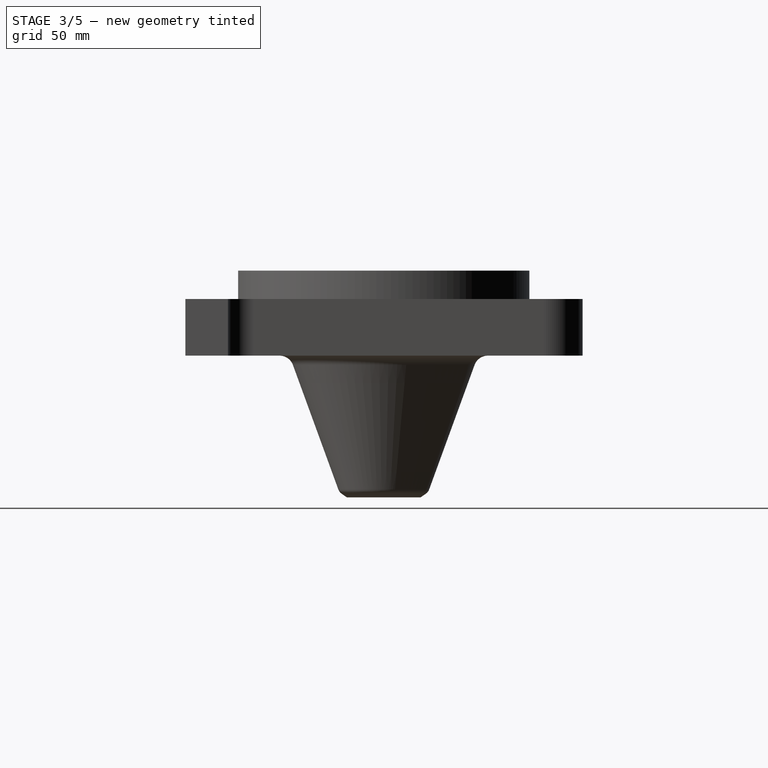
[diagram: stage 3 of 5 — right view after this stage's code; geometry added in this stage tinted green]
FEATURE [Spreadsheet::Sheet] Spreadsheet
  cells = A1=tube_thickness; B1(tube_thickness)=3.6; A2=tube_diameter; B2(tube_diameter)=110; A3=gap; B3(gap)=0.18; A4=height; B4(height)=150
FEATURE [PartDesign::AdditiveCylinder] Cylinder
  Angle = 360
  AttacherType = Attacher::AttachEngine3D
  Height = 8
  Radius = 51.4
  expr: Radius = Spreadsheet.tube_diameter / 2 - Spreadsheet.tube_thickness
FEATURE [PartDesign::AdditiveCylinder] Cylinder001
  Angle = 360
  AttacherType = Attacher::AttachEngine3D
  BaseFeature = -> Cylinder
  Height = 5
  Radius = 55
  expr: Radius = Spreadsheet.tube_diameter / 2
FEATURE [Sketcher::SketchObject] Sketch
  ExternalGeometry = -> [Cylinder001]
  FullyConstrained = true
  MapMode = 5
  Placement = pos=(0,0,8) rot=(0,0,1;0rad)
  Support = -> [Cylinder001]
  expr: Constraints[1] = Spreadsheet.tube_diameter / 2 - Spreadsheet.tube_thickness * 3
  sketch-geometry (3):
    g0: Circle CenterX=0 CenterY=44.2 CenterZ=0 NormalX=0 NormalY=0 NormalZ=1 AngleXU=0 Radius=2
    g1: Circle CenterX=0 CenterY=34.2 CenterZ=0 NormalX=0 NormalY=0 NormalZ=1 AngleXU=0 Radius=2
    g2: Circle CenterX=0 CenterY=24.2 CenterZ=0 NormalX=0 NormalY=0 NormalZ=1 AngleXU=0 Radius=2
  constraints (9):
    c: PointOnObject(g0,g-2)
    c: DistanceY(g-1,g0) = 44.2
    c: Radius(g0) = 2
    c: PointOnObject(g1,g-2)
    c: PointOnObject(g2,g-2)
    c: Equal(g2,g1)
    c: Equal(g1,g0)
    c: DistanceY(g1,g0) = 10
    c: DistanceY(g2,g1) = 10
FEATURE [PartDesign::Pocket] Pocket
  BaseFeature = -> Cylinder001
  Length = 5
  Length2 = 100
  Profile = -> Sketch
  Type = 1
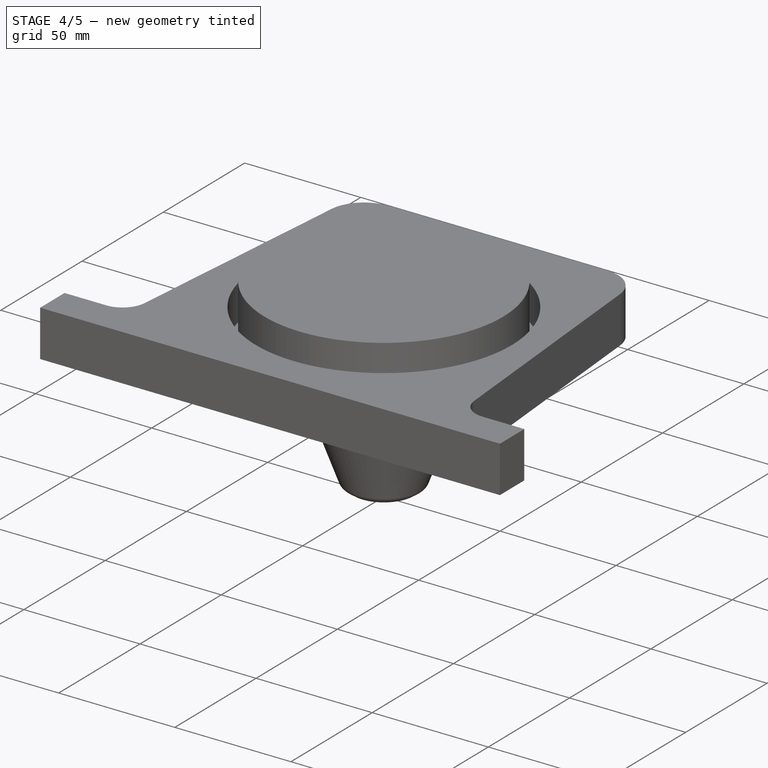
[diagram: stage 4 of 5 — iso view after this stage's code; geometry added in this stage tinted green]
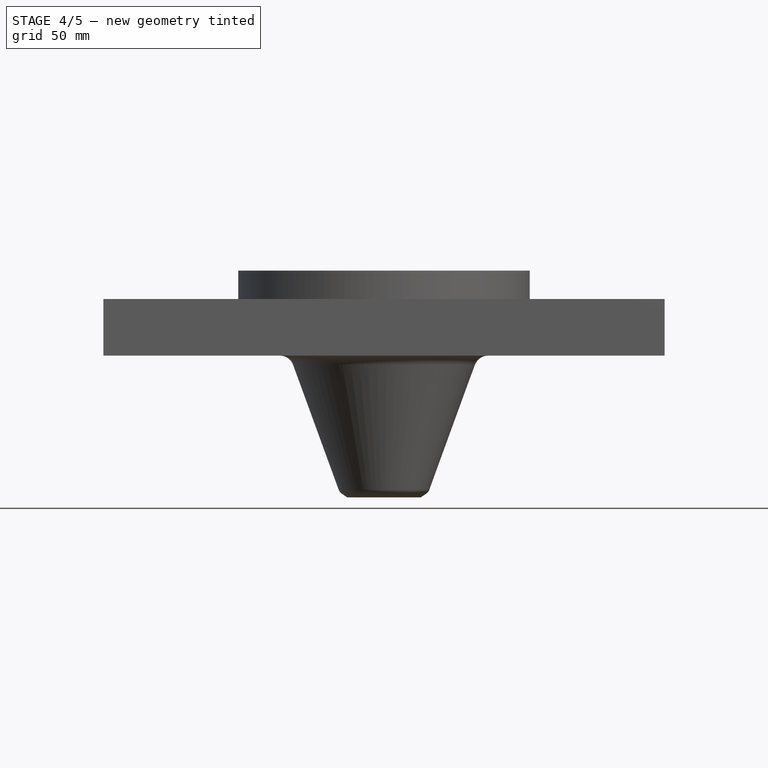
[diagram: stage 4 of 5 — front view after this stage's code; geometry added in this stage tinted green]
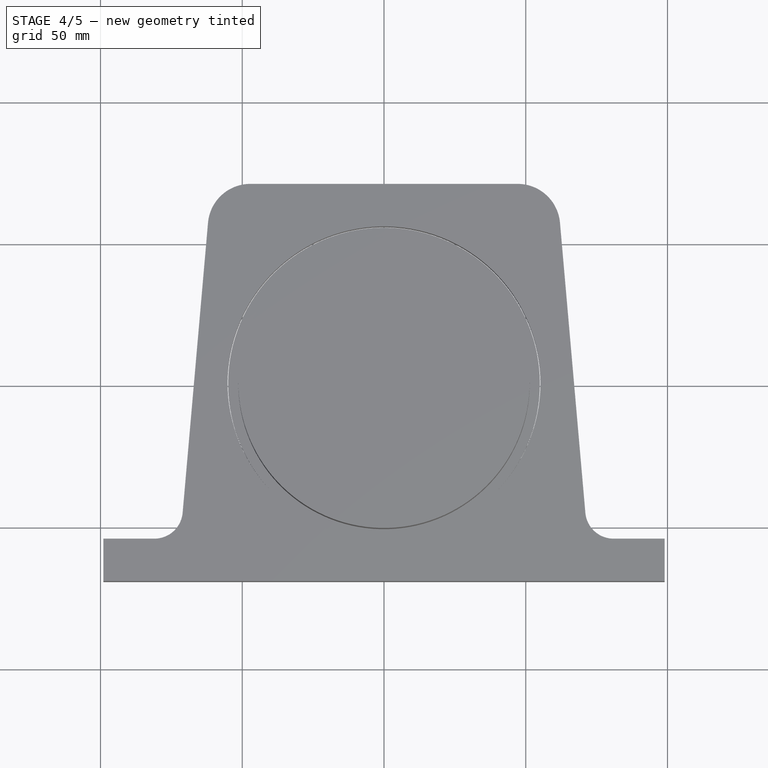
[diagram: stage 4 of 5 — top view after this stage's code; geometry added in this stage tinted green]
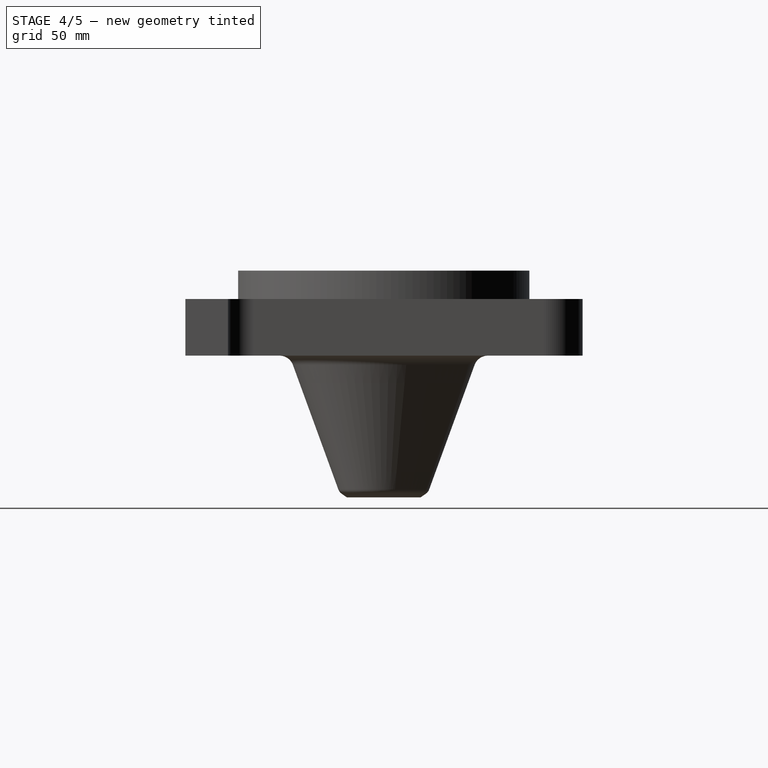
[diagram: stage 4 of 5 — right view after this stage's code; geometry added in this stage tinted green]
FEATURE [PartDesign::PolarPattern] PolarPattern
  Angle = 360
  Axis = -> Sketch [N_Axis]
  BaseFeature = -> Pocket
  Occurrences = 12
  Originals = -> [Pocket]
FEATURE [Sketcher::SketchObject] Sketch001
  FullyConstrained = true
  MapMode = 5
  Placement = pos=(0,0,8) rot=(0,0,1;0rad)
  Support = -> [PolarPattern]
  sketch-geometry (1):
    g0: Circle CenterX=0 CenterY=0 CenterZ=0 NormalX=0 NormalY=0 NormalZ=1 AngleXU=0 Radius=3
  constraints (2):
    c: Coincident(g0,g-1)
    c: Radius(g0) = 3
FEATURE [PartDesign::Pocket] Pocket001
  BaseFeature = -> PolarPattern
  Length = 5
  Length2 = 100
  Profile = -> Sketch001
  Type = 1
FEATURE [PartDesign::Chamfer] Chamfer
  Angle = 45
  Base = -> Pocket001 [Edge31,Edge30,Edge29,Edge32,Edge28,Edge27,Edge26,Edge23,Edge24,Edge25,Edge12,Edge10,Edge9,Edge11,Edge7,Edge5,Edge6,Edge8,Edge14,Edge16,Edge15,Edge13,Edge17,Edge18,Edge19,Edge20,Edge21,Edge22,Edge35,Edge33,Edge36,Edge34,Edge39,Edge40,Edge38,Edge37,Edge41]
  BaseFeature = -> Pocket001
  ChamferType = 0
  FlipDirection = false
  Refine = true
  Size = 1
  Size2 = 1
  SupportTransform = false
FEATURE [PartDesign::Chamfer] Chamfer002
  Angle = 45
  Base = -> Chamfer [Edge2]
  BaseFeature = -> Chamfer
  ChamferType = 0
  FlipDirection = false
  Size = 1
  Size2 = 1
  SupportTransform = false
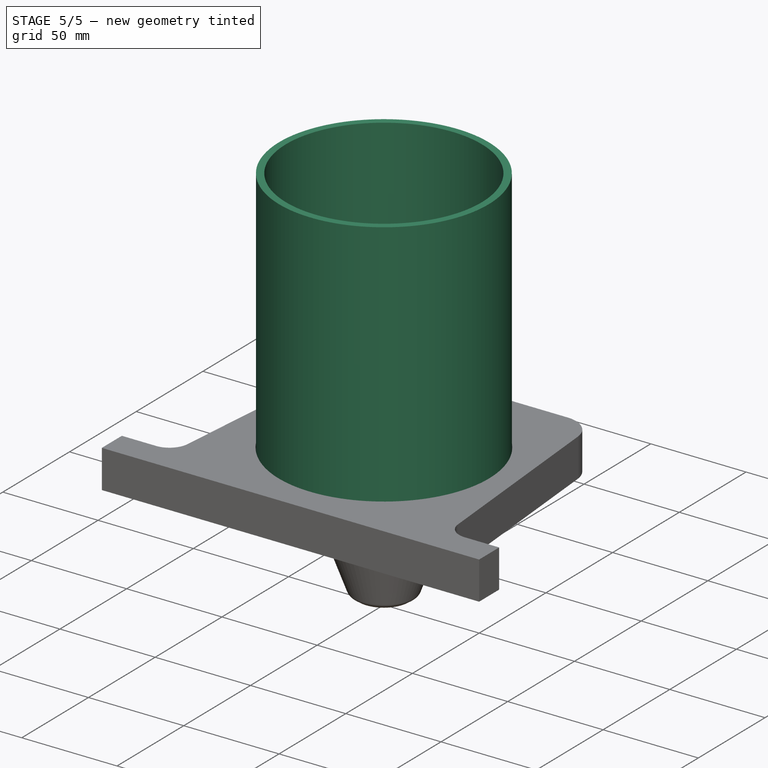
[diagram: stage 5 of 5 — iso view after this stage's code; geometry added in this stage tinted green]
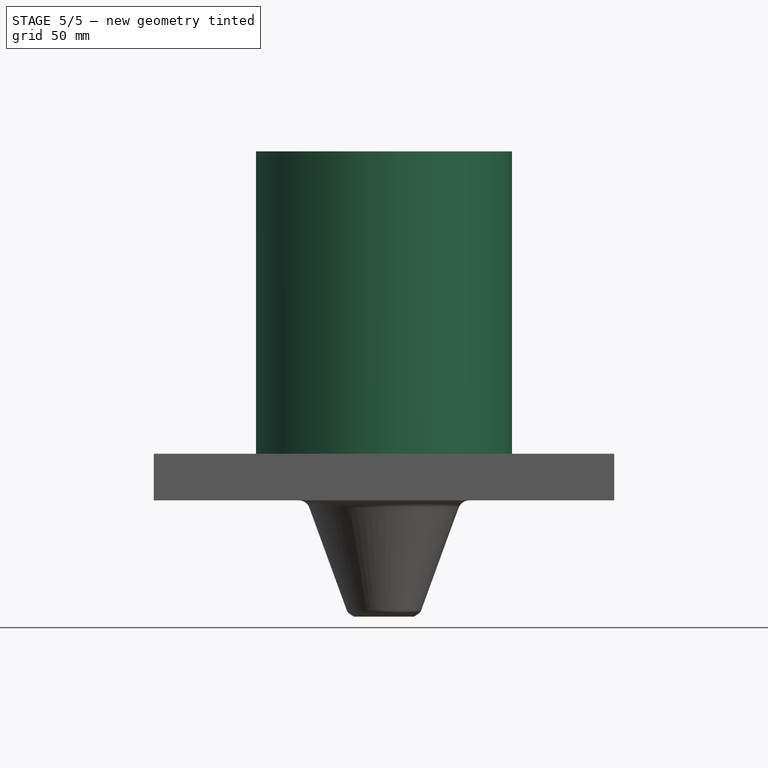
[diagram: stage 5 of 5 — front view after this stage's code; geometry added in this stage tinted green]
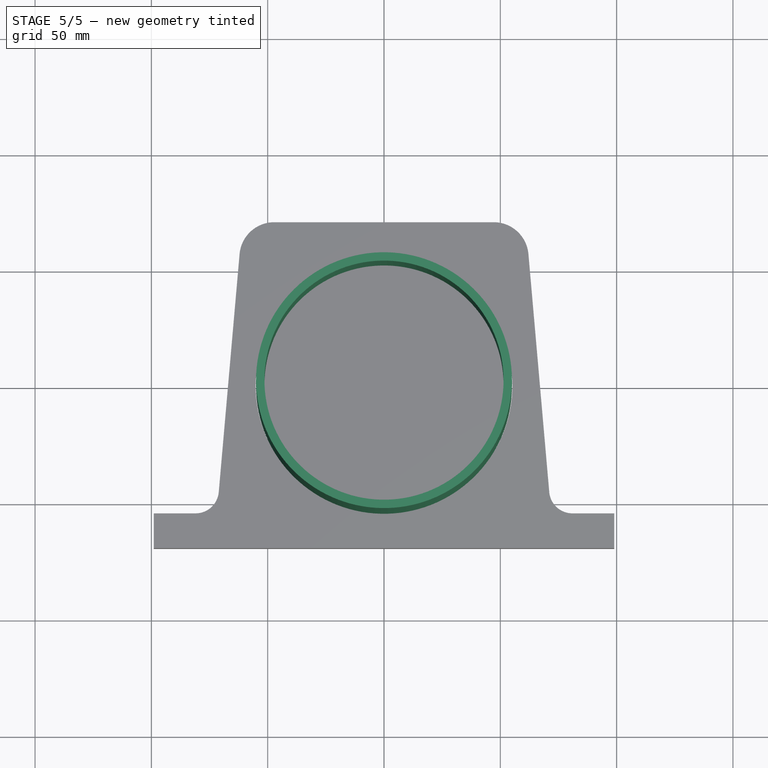
[diagram: stage 5 of 5 — top view after this stage's code; geometry added in this stage tinted green]
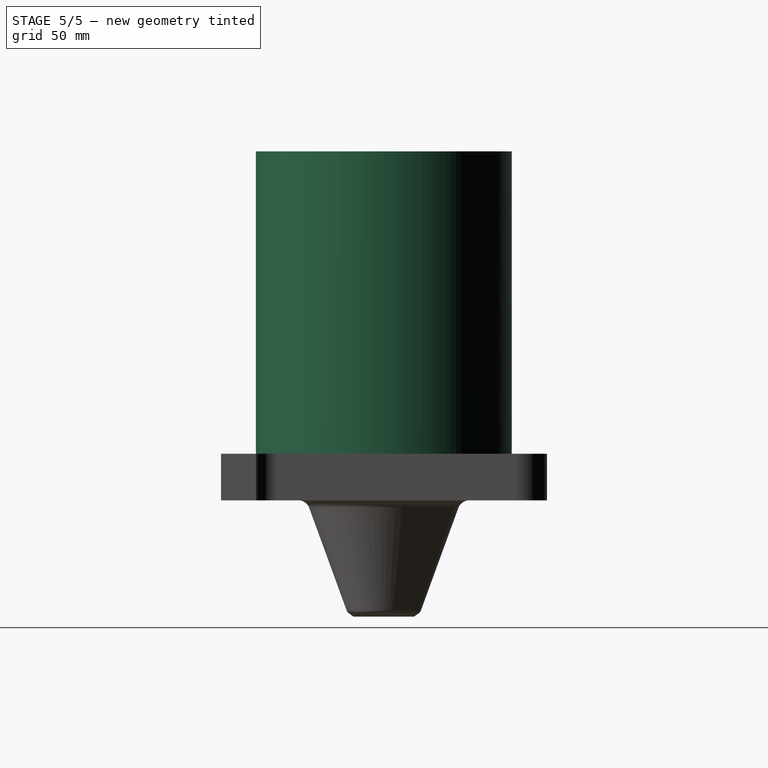
[diagram: stage 5 of 5 — right view after this stage's code; geometry added in this stage tinted green]
FEATURE [PartDesign::AdditiveCylinder] Cylinder003
  Angle = 360
  AttacherType = Attacher::AttachEngine3D
  Height = 150
  Radius = 55
  expr: Height = Spreadsheet.height
  expr: Radius = Spreadsheet.tube_diameter / 2
FEATURE [PartDesign::SubtractiveCylinder] Cylinder004
  Angle = 360
  AttacherType = Attacher::AttachEngine3D
  BaseFeature = -> Cylinder003
  Height = 150
  Radius = 51.4
  expr: Height = Spreadsheet.height
  expr: Radius = Spreadsheet.tube_diameter / 2 - Spreadsheet.tube_thickness
FEATURE [PartDesign::Chamfer] Chamfer003
  Angle = 45
  Base = -> Chamfer002 [Edge191]
  BaseFeature = -> Chamfer002
  ChamferType = 0
  FlipDirection = false
  Size = 1
  Size2 = 1
  SupportTransform = false
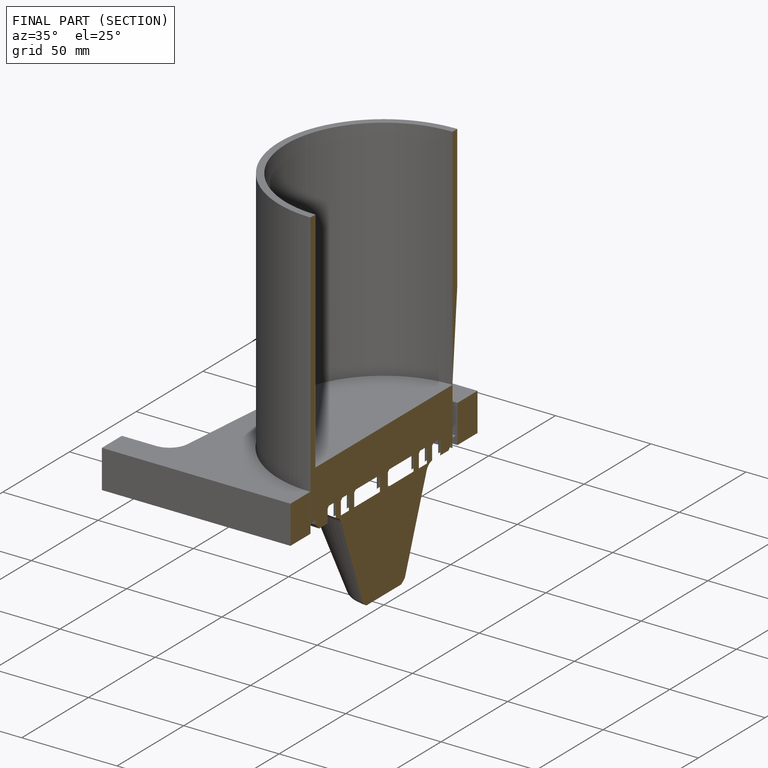
[diagram: finished part — half-section view (interior)]
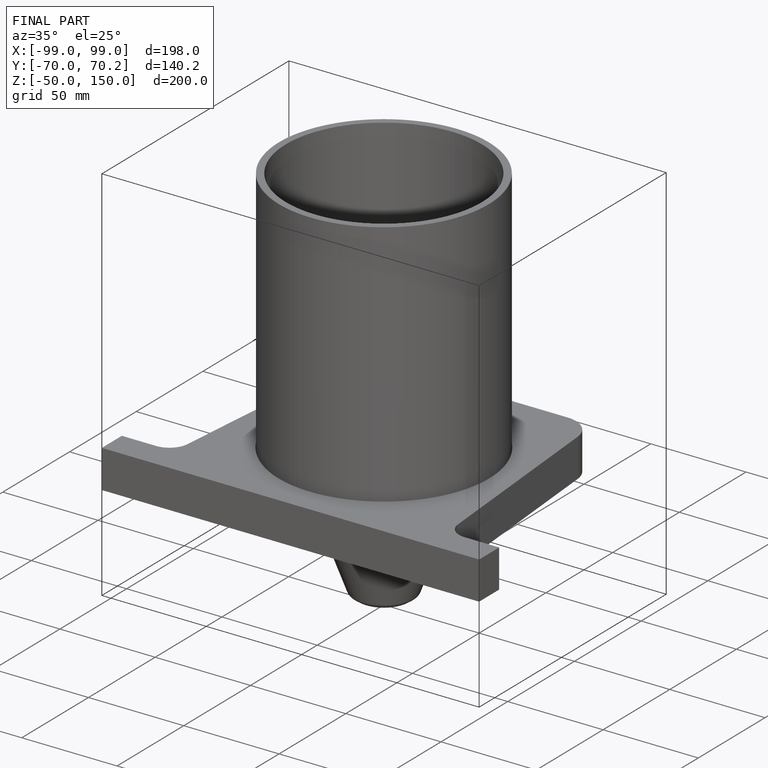
[diagram: finished part — iso view with bounding-box wireframe]
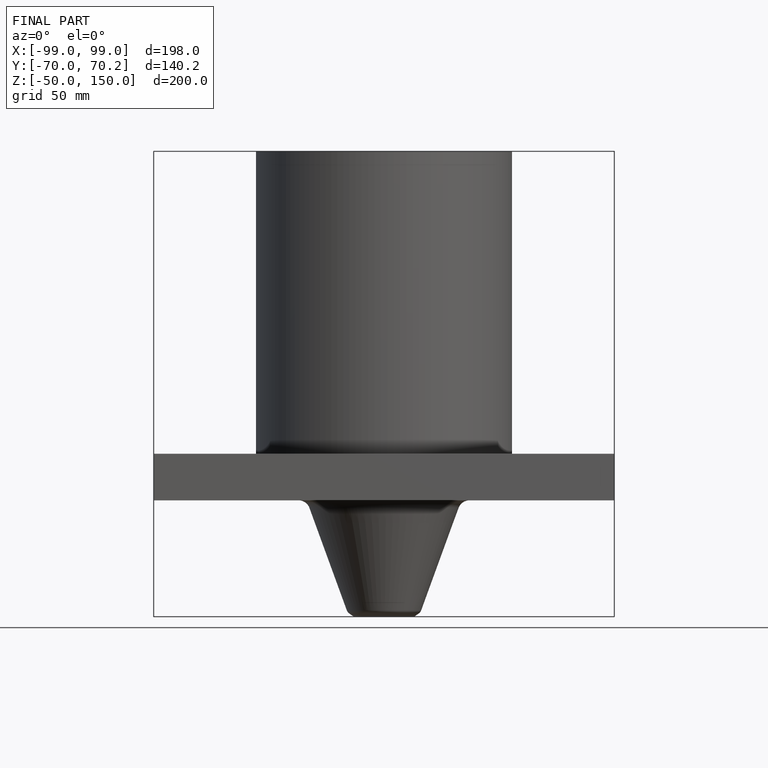
[diagram: finished part — front view with bounding-box wireframe]
